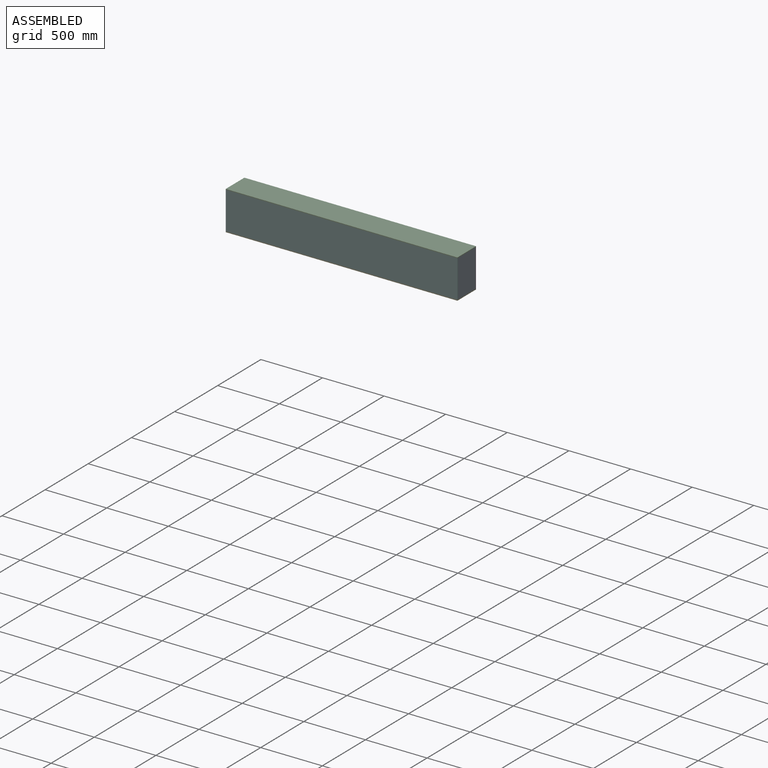
[diagram: assembled view]
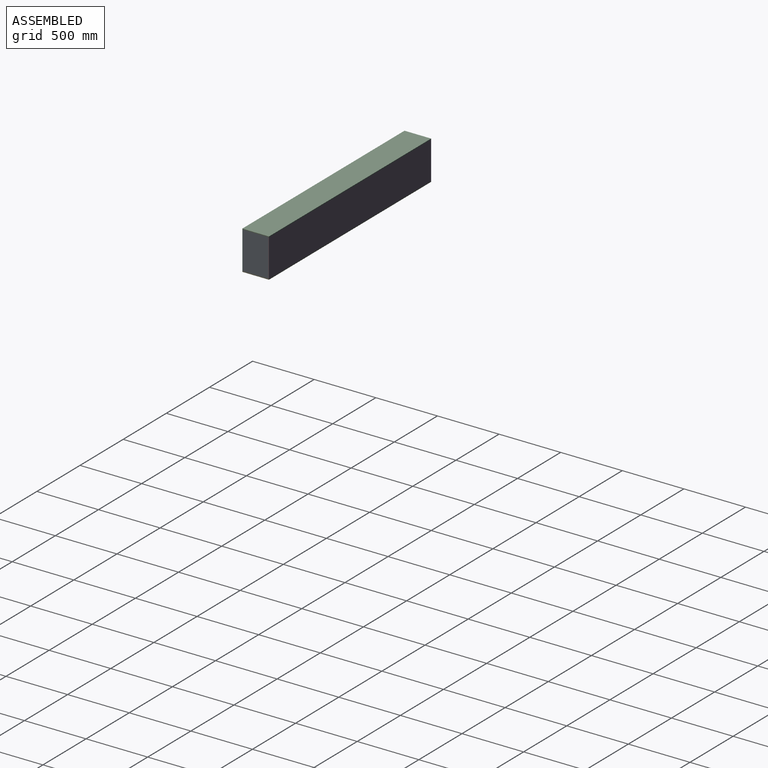
[diagram: assembled view, second angle]
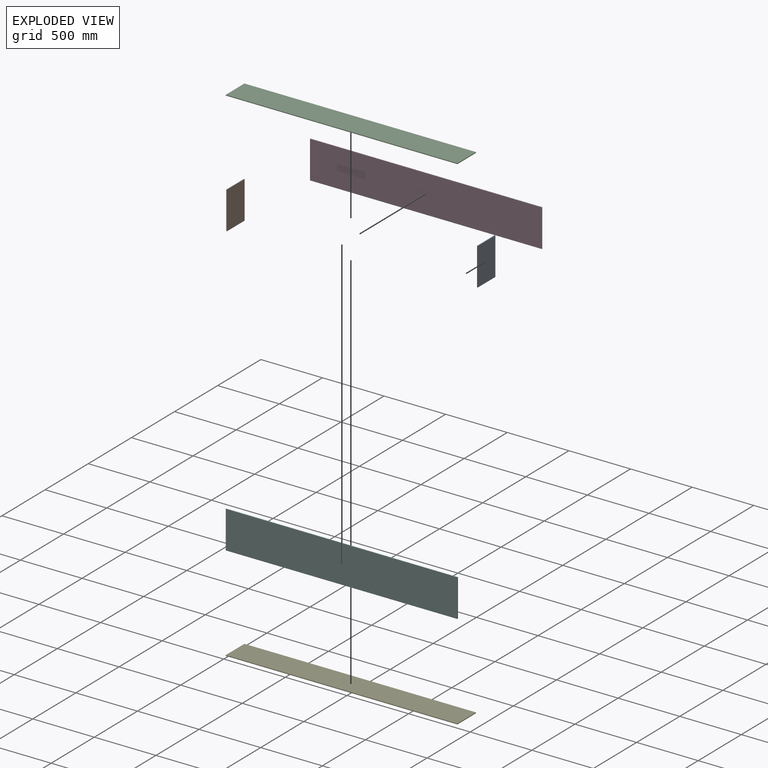
[diagram: exploded view]
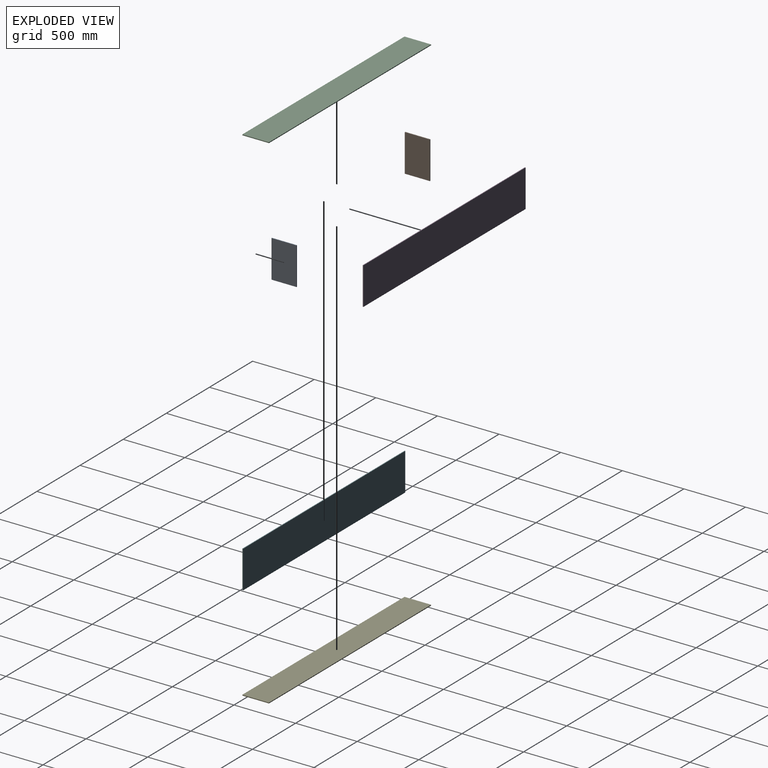
[diagram: exploded view, second angle]
ASSEMBLY  parts=6 mates=5
PART A: 6 faces, bbox 6.4x203.2x304.8 mm
  f0: plane 203.2x6.35mm, normal (0,0,1), area 1290.3mm2, adj f1,f3,f4,f5
  f1: plane 304.8x6.35mm, normal (0,-1,0), area 1935.5mm2, adj f0,f2,f4,f5
  f2: plane 203.2x6.35mm, normal (0,0,-1), area 1290.3mm2, adj f1,f3,f4,f5
  f3: plane 304.8x6.35mm, normal (0,1,0), area 1935.5mm2, adj f0,f2,f4,f5
  f4: plane 304.8x203.2mm, normal (1,0,0), area 61935.4mm2, adj f0,f1,f2,f3
  f5: plane 304.8x203.2mm, normal (-1,0,0), area 61935.4mm2, adj f0,f1,f2,f3
PART B: same geometry as A
PART C: 6 faces, bbox 1879.6x215.9x6.4 mm
  f0: plane 1879.6x6.35mm, normal (0,1,0), area 11935.5mm2, adj f1,f3,f4,f5
  f1: plane 215.9x6.35mm, normal (-1,0,0), area 1371mm2, adj f0,f2,f4,f5
  f2: plane 1879.6x6.35mm, normal (0,-1,0), area 11935.5mm2, adj f1,f3,f4,f5
  f3: plane 215.9x6.35mm, normal (1,0,0), area 1371mm2, adj f0,f2,f4,f5
  f4: plane 1879.6x215.9mm, normal (0,0,1), area 405805.6mm2, adj f0,f1,f2,f3
  f5: plane 1879.6x215.9mm, normal (0,0,-1), area 405805.6mm2, adj f0,f1,f2,f3
PART D: 6 faces, bbox 1879.6x6.4x304.8 mm
  f0: plane 1879.6x6.35mm, normal (0,0,1), area 11935.5mm2, adj f1,f3,f4,f5
  f1: plane 304.8x6.35mm, normal (-1,0,0), area 1935.5mm2, adj f0,f2,f4,f5
  f2: plane 1879.6x6.35mm, normal (0,0,-1), area 11935.5mm2, adj f1,f3,f4,f5
  f3: plane 304.8x6.35mm, normal (1,0,0), area 1935.5mm2, adj f0,f2,f4,f5
  f4: plane 1879.6x304.8mm, normal (0,-1,0), area 572902.1mm2, adj f0,f1,f2,f3
  f5: plane 1879.6x304.8mm, normal (0,1,0), area 572902.1mm2, adj f0,f1,f2,f3
PART E: same geometry as C
PART F: same geometry as D
PLACE A t=(892.01,103.89,40.58)mm
PLACE B t=(-981.24,103.89,40.58)mm
PLACE C t=(-61.53,332.53,242.76)mm
PLACE D t=(-59.05,212.73,382.8)mm
PLACE E t=(-61.53,332.53,-68.39)mm
PLACE F t=(-59.05,3.18,382.8)mm
MATE fastened D.f4 <-> A.f3  axis (0,-1,0) through (898.36,206.38,-62.04)mm
MATE fastened B.f1 <-> F.f5  axis (0,-1,0) through (-981.24,3.18,-62.04)mm
MATE fastened C.f5 <-> F.f0  axis (0,0,-1) through (898.36,-3.17,242.76)mm
MATE fastened E.f4 <-> F.f2  axis (0,0,1) through (898.36,-3.17,-62.04)mm
MATE fastened A.f1 <-> F.f5  axis (0,-1,0) through (898.36,3.18,-62.04)mm
